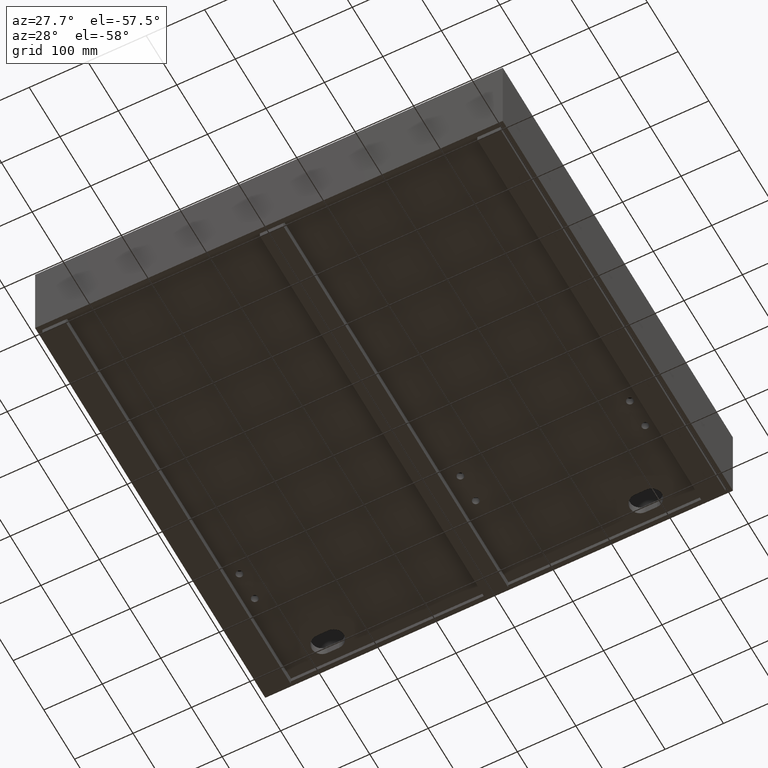
[diagram: clean part render]
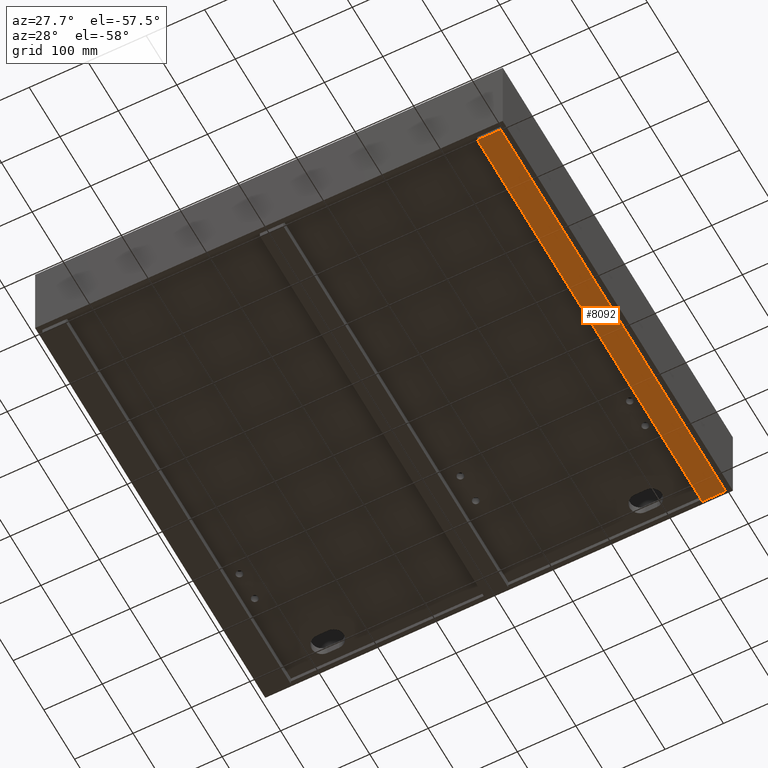
[diagram: same view with one face highlighted and labeled with its STEP entity id]
A machine part, auxiliary view. The second image highlights one B-rep face of the part: STEP entity #8092.
In plain terms, the highlighted planar face has unit normal (-0, 0, -1).
Its self-contained STEP definition (entity closure, byte-faithful):
#82 = VERTEX_POINT ( 'NONE', #2677 ) ;
#538 = DIRECTION ( 'NONE',  ( -1.000000000000000000, -5.008063851407352729E-36, 0.0000000000000000000 ) ) ;
#1191 = CARTESIAN_POINT ( 'NONE',  ( 792.0000000000000000, 741.4999000000001388, -157.0000000000003695 ) ) ;
#1323 = CARTESIAN_POINT ( 'NONE',  ( 752.0000000000002274, 741.4999000000001388, -157.0000000000003695 ) ) ;
#1423 = PLANE ( 'NONE',  #2130 ) ;
#1568 = EDGE_LOOP ( 'NONE', ( #2825, #7963, #7441, #2682 ) ) ;
#1603 = VERTEX_POINT ( 'NONE', #8863 ) ;
#1699 = CARTESIAN_POINT ( 'NONE',  ( 791.9999999999998863, 8.500000000000007105, -157.0000000000003695 ) ) ;
#2130 = AXIS2_PLACEMENT_3D ( 'NONE', #5025, #8627, #538 ) ;
#2677 = CARTESIAN_POINT ( 'NONE',  ( 752.0000000000002274, 741.4999000000001388, -157.0000000000003695 ) ) ;
#2682 = ORIENTED_EDGE ( 'NONE', *, *, #9479, .T. ) ;
#2825 = ORIENTED_EDGE ( 'NONE', *, *, #7614, .T. ) ;
#3231 = LINE ( 'NONE', #6827, #6673 ) ;
#4471 = CARTESIAN_POINT ( 'NONE',  ( 792.0000000000000000, 741.4999000000001388, -157.0000000000003695 ) ) ;
#4925 = DIRECTION ( 'NONE',  ( 3.029258324933349486E-16, 1.000000000000000000, -7.703719777548943412E-34 ) ) ;
#5025 = CARTESIAN_POINT ( 'NONE',  ( 0.0000000000000000000, 0.0000000000000000000, -157.0000000000003695 ) ) ;
#5310 = DIRECTION ( 'NONE',  ( -1.000000000000000000, -5.008063851407352729E-36, 0.0000000000000000000 ) ) ;
#6127 = EDGE_CURVE ( 'NONE', #8720, #1603, #9804, .T. ) ;
#6484 = VECTOR ( 'NONE', #8062, 1000.000000000000000 ) ;
#6673 = VECTOR ( 'NONE', #10452, 1000.000000000000000 ) ;
#6827 = CARTESIAN_POINT ( 'NONE',  ( 792.0000000000000000, 741.4999000000001388, -157.0000000000003695 ) ) ;
#7441 = ORIENTED_EDGE ( 'NONE', *, *, #8568, .T. ) ;
#7614 = EDGE_CURVE ( 'NONE', #10543, #8720, #11501, .T. ) ;
#7963 = ORIENTED_EDGE ( 'NONE', *, *, #6127, .T. ) ;
#8062 = DIRECTION ( 'NONE',  ( -1.514629162466674743E-16, -1.000000000000000000, 7.703719777548943412E-34 ) ) ;
#8092 = ADVANCED_FACE ( 'NONE', ( #9518 ), #1423, .T. ) ;
#8568 = EDGE_CURVE ( 'NONE', #1603, #82, #9414, .T. ) ;
#8627 = DIRECTION ( 'NONE',  ( -0.0000000000000000000, 0.0000000000000000000, -1.000000000000000000 ) ) ;
#8720 = VERTEX_POINT ( 'NONE', #10600 ) ;
#8863 = CARTESIAN_POINT ( 'NONE',  ( 752.0000000000000000, 8.500000000000007105, -157.0000000000003695 ) ) ;
#9414 = LINE ( 'NONE', #1323, #10260 ) ;
#9479 = EDGE_CURVE ( 'NONE', #82, #10543, #3231, .T. ) ;
#9518 = FACE_OUTER_BOUND ( 'NONE', #1568, .T. ) ;
#9804 = LINE ( 'NONE', #1699, #10425 ) ;
#10260 = VECTOR ( 'NONE', #4925, 1000.000000000000000 ) ;
#10425 = VECTOR ( 'NONE', #5310, 1000.000000000000000 ) ;
#10452 = DIRECTION ( 'NONE',  ( 1.000000000000000000, 5.008063851407352729E-36, 0.0000000000000000000 ) ) ;
#10543 = VERTEX_POINT ( 'NONE', #1191 ) ;
#10600 = CARTESIAN_POINT ( 'NONE',  ( 791.9999999999998863, 8.500000000000007105, -157.0000000000003695 ) ) ;
#11501 = LINE ( 'NONE', #4471, #6484 ) ;